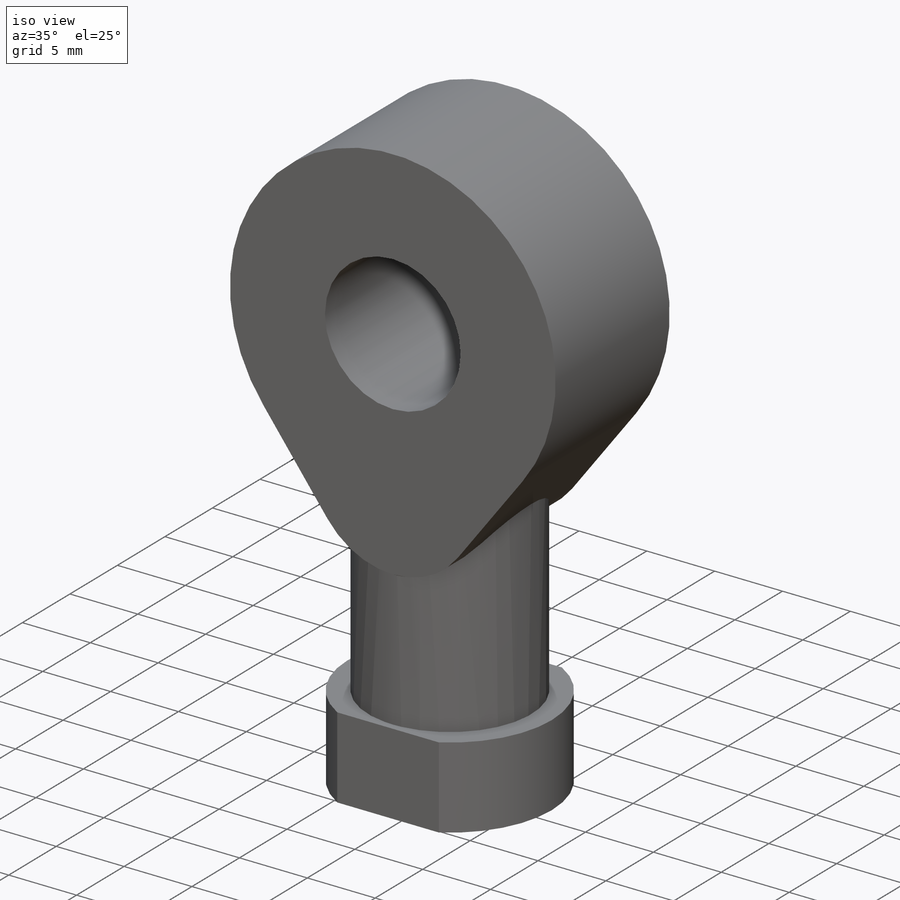
[diagram: iso view]
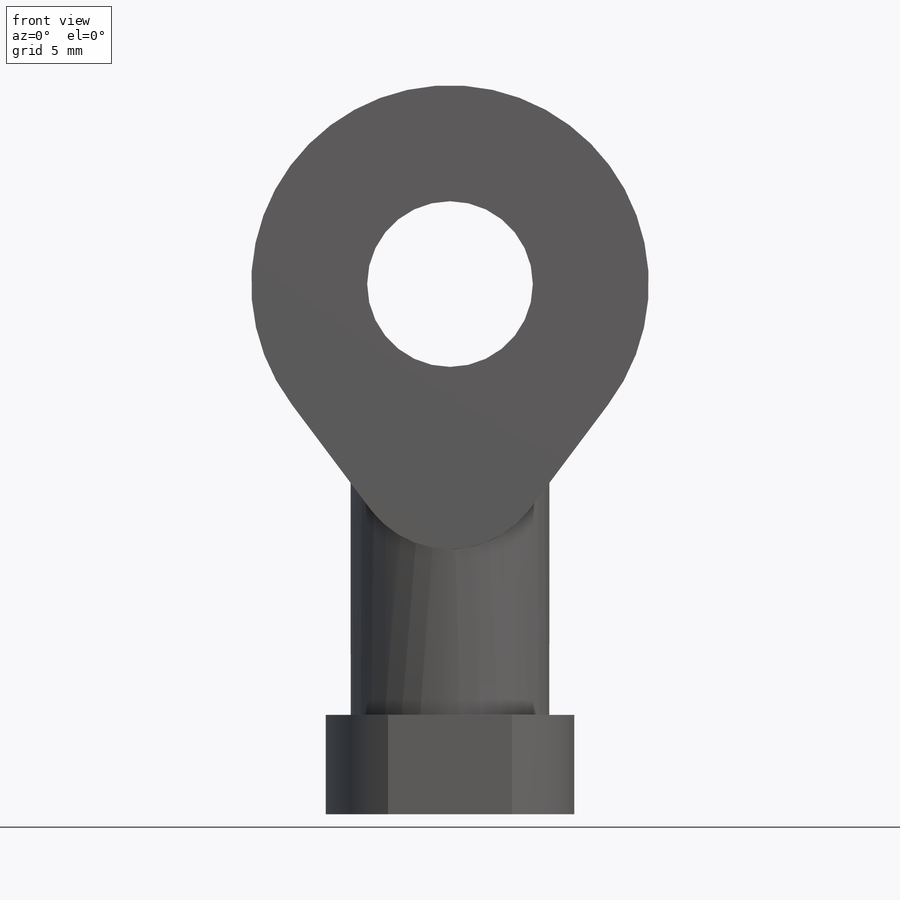
[diagram: front view]
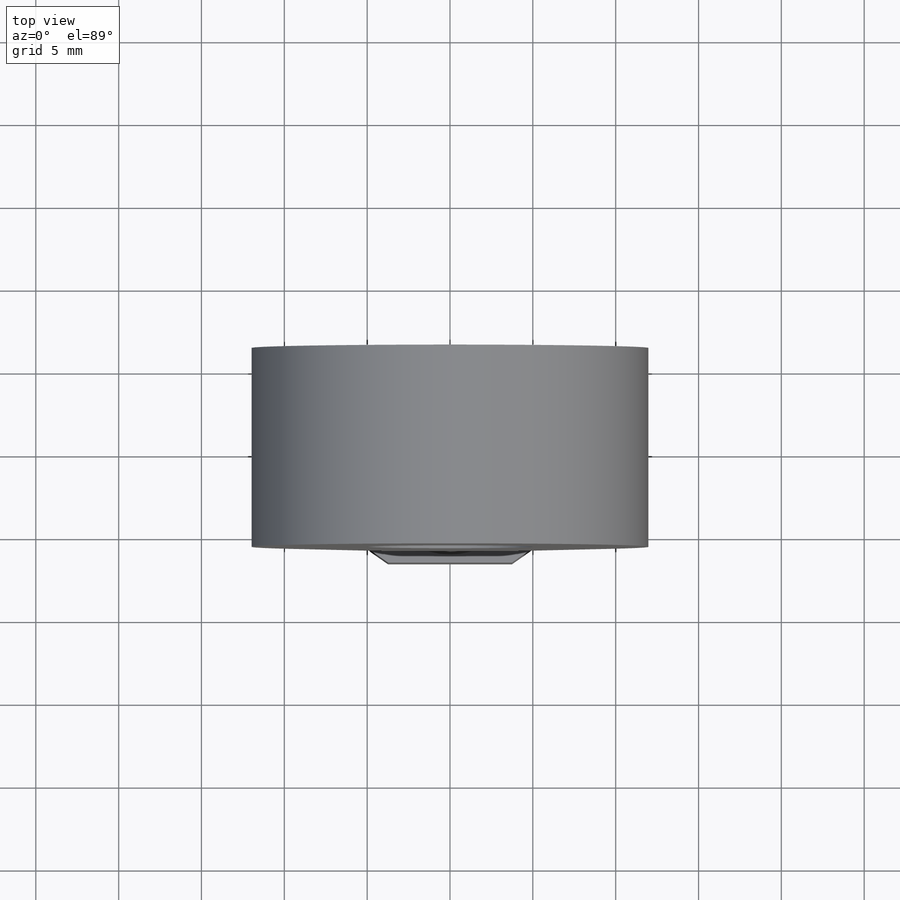
[diagram: top view]
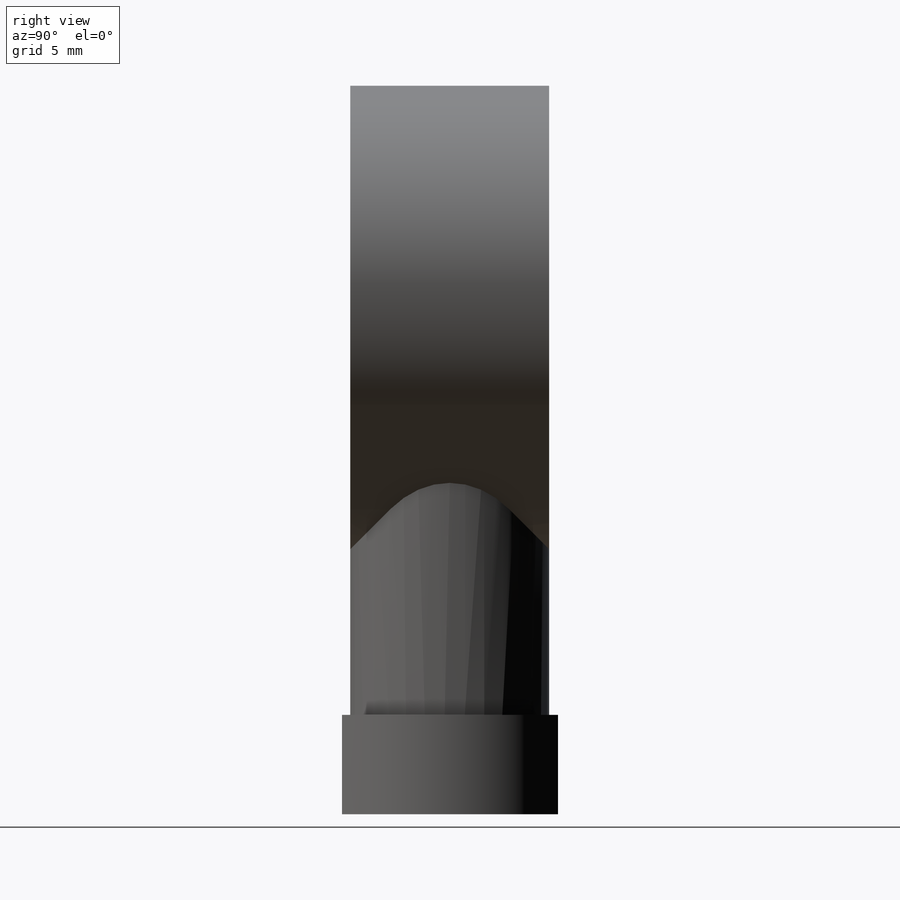
[diagram: right view]
SOLIDWORKS PART (.sldprt)
format: sldprt  version: not decoded by parser v0  size: 199,168 bytes
history: native  units: mm
features: sketch x5, extrude x3, cut_extrude x2, material x1 (+13 scaffold rows collapsed)
feature tree (24):
  scaffold x13  (default folders/planes/origin — collapsed)
  material  "Material <not specified>"
  sketch  "Sketch2"  dims[D1=~4.008491mm D2=6.5mm D3=~7.482953mm D4=6.5mm]
  extrude  "Boss-Extrude1"  Depth=6mm
  sketch  "Sketch3"  dims[D1=12.0mm]
  extrude  "Boss-Extrude2"  Depth=14mm
  sketch  "Sketch4"  dims[D2=24.0mm D3=6.0mm D1=12.0mm]
  extrude  "Boss-Extrude3"  Depth=6mm
  sketch  "Sketch5"  dims[c1.D1=~5.605253mm c1.D2=10.0mm c2.D1=32.0mm]
  cut_extrude  "Cut-Extrude1"  [1 undecoded]
  sketch  "Sketch6"  dims[D1=~5.176337mm]
  cut_extrude  "Cut-Extrude2"  Depth=20mm
decode coverage: 9 of 10 modeling features carry decoded parameters
note: ~ marks probable driven/reference dimensions
note: 1 parameter value undecoded
note: suppression state not decoded; provenance and decode notes live in map.json
